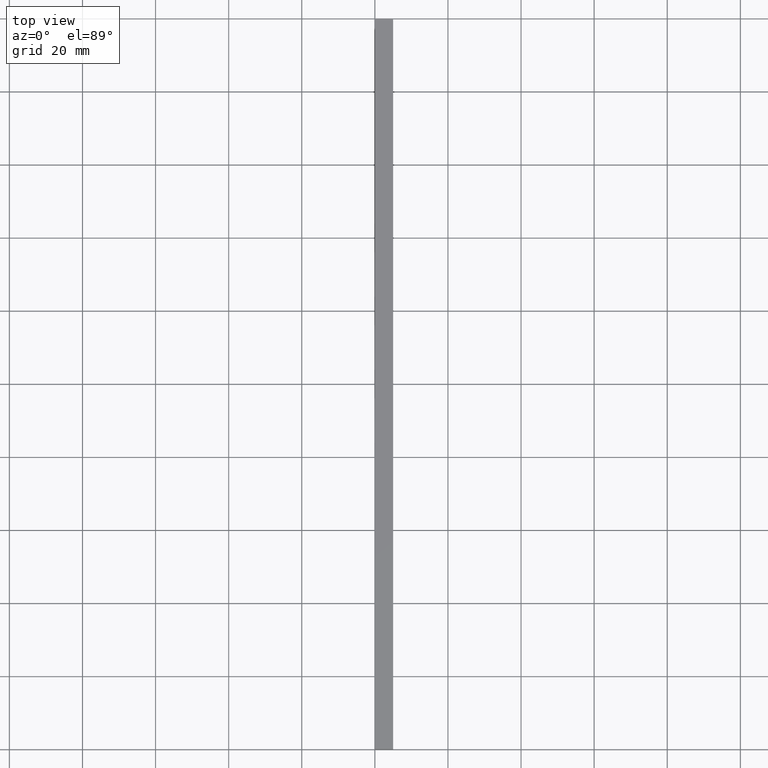
[diagram: clean part render]
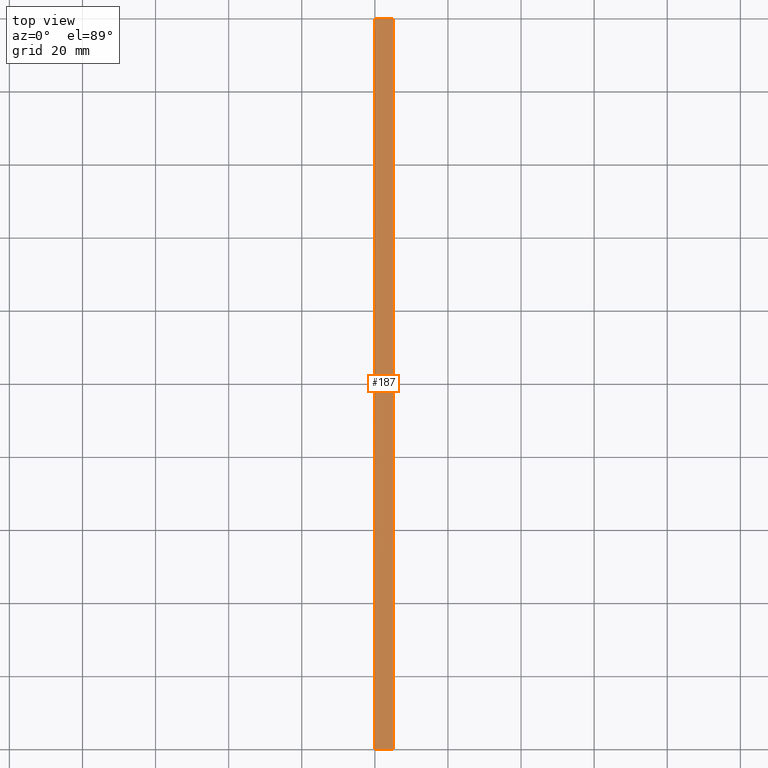
[diagram: same view with one face highlighted and labeled with its STEP entity id]
A machine part, top view. The second image highlights one B-rep face of the part: STEP entity #187.
In plain terms, the highlighted planar face has unit normal (0, 0, -1).
Its self-contained STEP definition (entity closure, byte-faithful):
#22 = EDGE_CURVE ( 'NONE', #30, #212, #214, .T. ) ;
#30 = VERTEX_POINT ( 'NONE', #219 ) ;
#32 = EDGE_CURVE ( 'NONE', #212, #237, #221, .T. ) ;
#35 = EDGE_LOOP ( 'NONE', ( #209, #76, #128, #71 ) ) ;
#42 = CARTESIAN_POINT ( 'NONE',  ( 0.0000000000000000000, 0.0000000000000000000, 5.000000000000000000 ) ) ;
#54 = CARTESIAN_POINT ( 'NONE',  ( 5.000000000000000000, 0.0000000000000000000, 5.000000000000000000 ) ) ;
#61 = VECTOR ( 'NONE', #194, 1000.000000000000000 ) ;
#62 = DIRECTION ( 'NONE',  ( 0.0000000000000000000, -1.000000000000000000, 0.0000000000000000000 ) ) ;
#70 = EDGE_CURVE ( 'NONE', #30, #90, #73, .T. ) ;
#71 = ORIENTED_EDGE ( 'NONE', *, *, #22, .T. ) ;
#73 = LINE ( 'NONE', #201, #89 ) ;
#76 = ORIENTED_EDGE ( 'NONE', *, *, #94, .F. ) ;
#77 = CARTESIAN_POINT ( 'NONE',  ( 5.000000000000000000, 200.0000000000000000, 5.000000000000000000 ) ) ;
#87 = AXIS2_PLACEMENT_3D ( 'NONE', #213, #228, #115 ) ;
#89 = VECTOR ( 'NONE', #116, 1000.000000000000000 ) ;
#90 = VERTEX_POINT ( 'NONE', #77 ) ;
#94 = EDGE_CURVE ( 'NONE', #90, #237, #225, .T. ) ;
#96 = PLANE ( 'NONE',  #87 ) ;
#115 = DIRECTION ( 'NONE',  ( -1.000000000000000000, 0.0000000000000000000, 0.0000000000000000000 ) ) ;
#116 = DIRECTION ( 'NONE',  ( 1.000000000000000000, 0.0000000000000000000, 0.0000000000000000000 ) ) ;
#128 = ORIENTED_EDGE ( 'NONE', *, *, #70, .F. ) ;
#135 = DIRECTION ( 'NONE',  ( 1.000000000000000000, 0.0000000000000000000, 0.0000000000000000000 ) ) ;
#159 = CARTESIAN_POINT ( 'NONE',  ( 0.0000000000000000000, 0.0000000000000000000, 5.000000000000000000 ) ) ;
#165 = VECTOR ( 'NONE', #62, 1000.000000000000000 ) ;
#187 = ADVANCED_FACE ( 'NONE', ( #222 ), #96, .F. ) ;
#194 = DIRECTION ( 'NONE',  ( 0.0000000000000000000, -1.000000000000000000, 0.0000000000000000000 ) ) ;
#201 = CARTESIAN_POINT ( 'NONE',  ( 0.0000000000000000000, 200.0000000000000000, 5.000000000000000000 ) ) ;
#208 = VECTOR ( 'NONE', #135, 1000.000000000000000 ) ;
#209 = ORIENTED_EDGE ( 'NONE', *, *, #32, .T. ) ;
#212 = VERTEX_POINT ( 'NONE', #159 ) ;
#213 = CARTESIAN_POINT ( 'NONE',  ( 0.0000000000000000000, 1000.000000000000000, 5.000000000000000000 ) ) ;
#214 = LINE ( 'NONE', #218, #165 ) ;
#218 = CARTESIAN_POINT ( 'NONE',  ( 0.0000000000000000000, 1000.000000000000000, 5.000000000000000000 ) ) ;
#219 = CARTESIAN_POINT ( 'NONE',  ( 0.0000000000000000000, 200.0000000000000000, 5.000000000000000000 ) ) ;
#221 = LINE ( 'NONE', #42, #208 ) ;
#222 = FACE_OUTER_BOUND ( 'NONE', #35, .T. ) ;
#225 = LINE ( 'NONE', #229, #61 ) ;
#228 = DIRECTION ( 'NONE',  ( 0.0000000000000000000, 0.0000000000000000000, -1.000000000000000000 ) ) ;
#229 = CARTESIAN_POINT ( 'NONE',  ( 5.000000000000000000, 1000.000000000000000, 5.000000000000000000 ) ) ;
#237 = VERTEX_POINT ( 'NONE', #54 ) ;